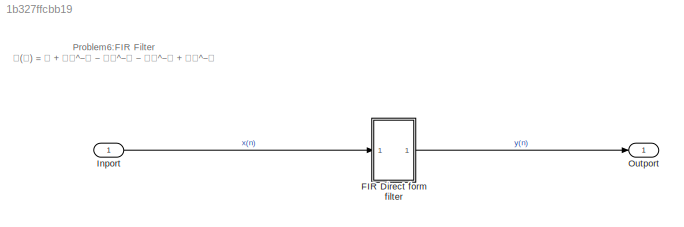
MODEL slx_1b327ffcbb19
KIND model
CONFIG AbsTol = auto
CONFIG EnableMultiTasking = off
CONFIG FixedStep = auto
CONFIG MaxStep = auto
CONFIG MinStep = auto
CONFIG RelTol = 1e-3
CONFIG SampleTimeConstraint = Unconstrained
CONFIG SolverName = VariableStepAuto
CONFIG StartTime = 0.0
CONFIG StopTime = 10.0
BLOCK [ModelReference] FIR Direct form filter
  ModelNameDialog = FIR_Direct_form_filter
  ModelReferenceVersion = 1.2
  Ports = [1, 1]
BLOCK [Inport] Inport
BLOCK [Outport] Outport
ANNOTATION (root): Problem6:FIR Filter 𝐇(𝐳) = 𝟏 + 𝟐𝐳^−𝟏 − 𝟑𝐳^−𝟐 − 𝟒𝐳^−𝟑 + 𝟓𝐳^−𝟒
LINE FIR Direct form filter:1 -> Outport:1
LINE Inport:1 -> FIR Direct form filter:1
